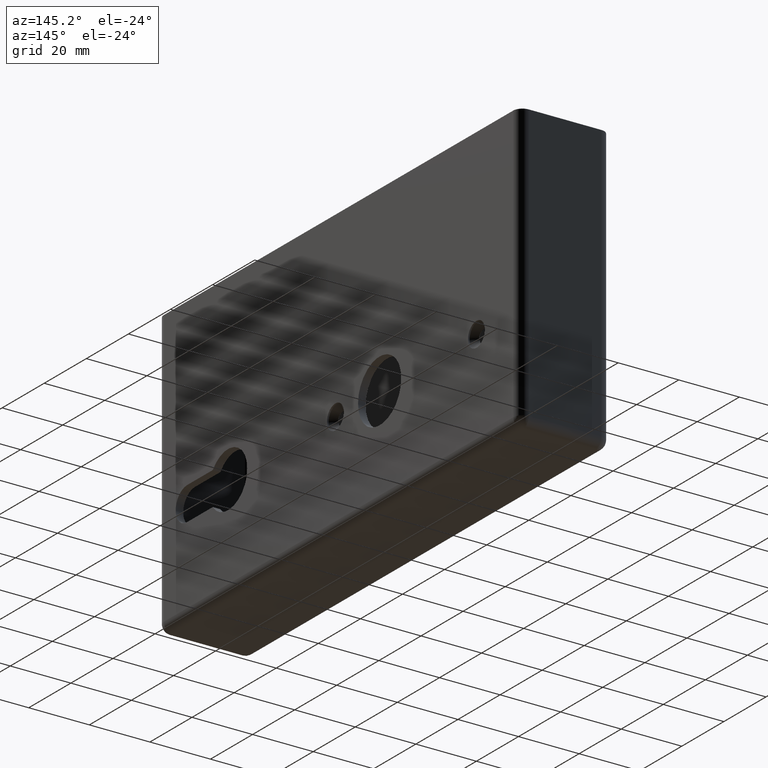
[diagram: clean part render]
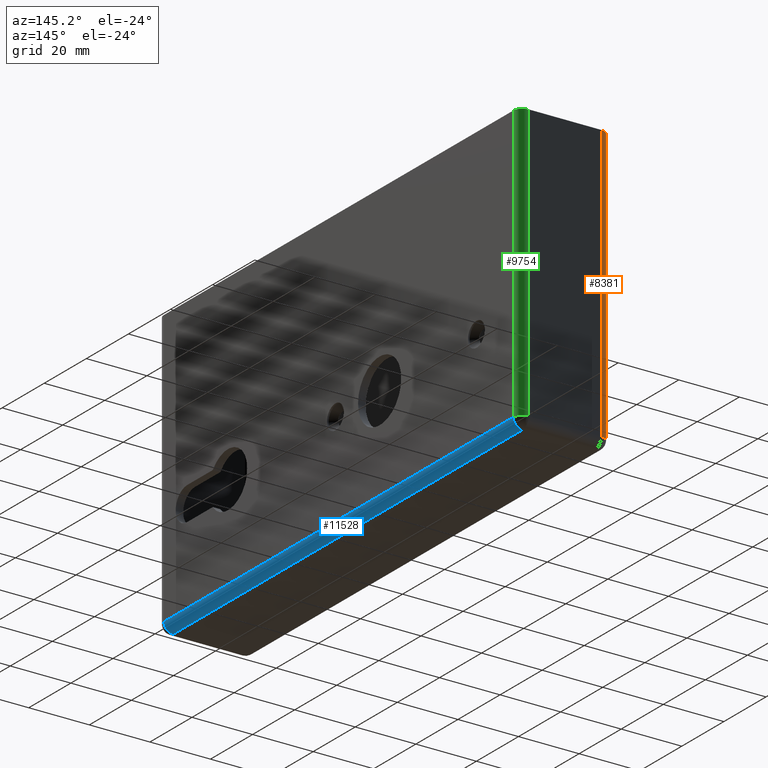
[diagram: same view with three faces highlighted in distinct colors, each labeled with its STEP entity id]
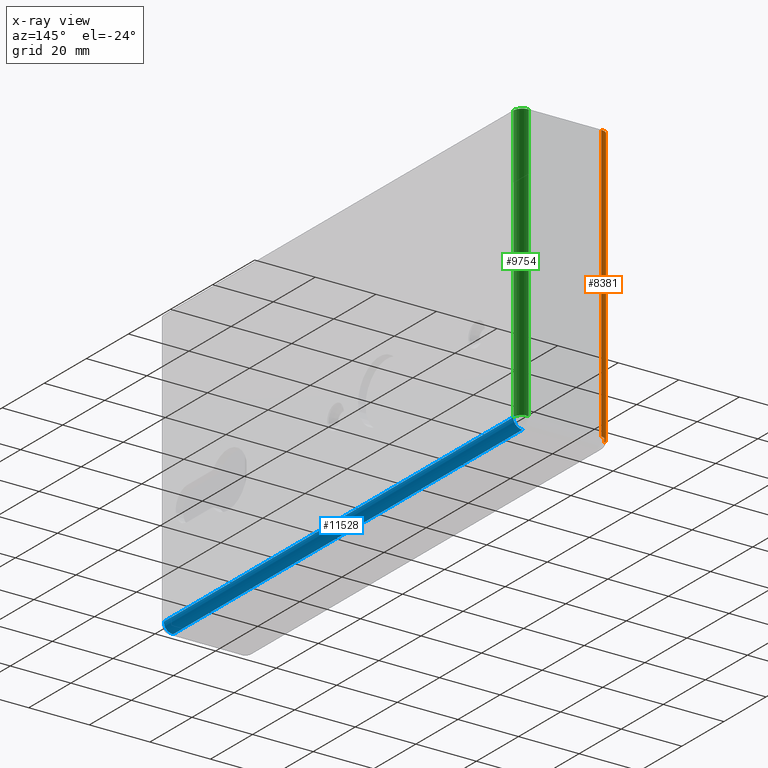
[diagram: x-ray of the same camera — body ghosted, the three highlighted faces saturated]
A machine part, auxiliary view with three faces highlighted in distinct colors.
The next image is the same camera in x-ray (body ghosted, the three faces saturated) — at least one of them is partly hidden behind the body in this view.
Their STEP definitions:

[orange] entity #8381 — the highlighted cylindrical surface (edge-blend (fillet) strip) has radius 3 mm, axis along (0, 0, -1).
#899 = CIRCLE ( 'NONE', #5207, 2.999999999999999112 ) ;
#1094 = DIRECTION ( 'NONE',  ( -0.000000000000000000, -0.000000000000000000, 1.000000000000000000 ) ) ;
#1478 = VERTEX_POINT ( 'NONE', #10431 ) ;
#2577 = EDGE_LOOP ( 'NONE', ( #9421, #10804, #11515, #5413 ) ) ;
#2698 = DIRECTION ( 'NONE',  ( 0.000000000000000000, 0.000000000000000000, -1.000000000000000000 ) ) ;
#2800 = DIRECTION ( 'NONE',  ( -1.000000000000000000, 0.000000000000000000, 0.000000000000000000 ) ) ;
#2939 = DIRECTION ( 'NONE',  ( 0.000000000000000000, 0.000000000000000000, -1.000000000000000000 ) ) ;
#2942 = AXIS2_PLACEMENT_3D ( 'NONE', #7628, #9788, #2800 ) ;
#3278 = FACE_OUTER_BOUND ( 'NONE', #2577, .T. ) ;
#3838 = DIRECTION ( 'NONE',  ( -1.000000000000000000, 0.000000000000000000, 0.000000000000000000 ) ) ;
#4299 = CIRCLE ( 'NONE', #8607, 2.999999999999999112 ) ;
#4366 = EDGE_CURVE ( 'NONE', #1478, #7816, #6115, .T. ) ;
#4536 = CARTESIAN_POINT ( 'NONE',  ( -15.00000000000000533, 82.99999999999998579, -44.00000000000000000 ) ) ;
#5207 = AXIS2_PLACEMENT_3D ( 'NONE', #6600, #9616, #7552 ) ;
#5413 = ORIENTED_EDGE ( 'NONE', *, *, #7765, .F. ) ;
#5968 = CARTESIAN_POINT ( 'NONE',  ( -12.00000000000000355, 82.99999999999998579, -44.00000000000000000 ) ) ;
#6115 = LINE ( 'NONE', #8991, #10824 ) ;
#6384 = VERTEX_POINT ( 'NONE', #11853 ) ;
#6600 = CARTESIAN_POINT ( 'NONE',  ( -12.00000000000000355, 82.99999999999998579, 47.00000000000000000 ) ) ;
#6722 = CYLINDRICAL_SURFACE ( 'NONE', #2942, 2.999999999999999112 ) ;
#7193 = EDGE_CURVE ( 'NONE', #7816, #6384, #899, .T. ) ;
#7552 = DIRECTION ( 'NONE',  ( 1.000000000000000000, 0.000000000000000000, 0.000000000000000000 ) ) ;
#7628 = CARTESIAN_POINT ( 'NONE',  ( -12.00000000000000355, 82.99999999999998579, 47.00000000000000000 ) ) ;
#7765 = EDGE_CURVE ( 'NONE', #6384, #10489, #12994, .T. ) ;
#7816 = VERTEX_POINT ( 'NONE', #10339 ) ;
#8381 = ADVANCED_FACE ( 'NONE', ( #3278 ), #6722, .T. ) ;
#8607 = AXIS2_PLACEMENT_3D ( 'NONE', #5968, #2939, #3838 ) ;
#8991 = CARTESIAN_POINT ( 'NONE',  ( -12.00000000000000355, 86.00000000000000000, 47.00000000000000000 ) ) ;
#9421 = ORIENTED_EDGE ( 'NONE', *, *, #7193, .F. ) ;
#9616 = DIRECTION ( 'NONE',  ( 0.000000000000000000, 0.000000000000000000, 1.000000000000000000 ) ) ;
#9788 = DIRECTION ( 'NONE',  ( 0.000000000000000000, 0.000000000000000000, -1.000000000000000000 ) ) ;
#10339 = CARTESIAN_POINT ( 'NONE',  ( -12.00000000000000355, 86.00000000000000000, 47.00000000000000000 ) ) ;
#10431 = CARTESIAN_POINT ( 'NONE',  ( -12.00000000000000355, 86.00000000000000000, -44.00000000000000000 ) ) ;
#10448 = VECTOR ( 'NONE', #2698, 1000.000000000000000 ) ;
#10489 = VERTEX_POINT ( 'NONE', #4536 ) ;
#10804 = ORIENTED_EDGE ( 'NONE', *, *, #4366, .F. ) ;
#10824 = VECTOR ( 'NONE', #1094, 1000.000000000000000 ) ;
#11304 = CARTESIAN_POINT ( 'NONE',  ( -15.00000000000000533, 82.99999999999998579, 47.00000000000000000 ) ) ;
#11354 = EDGE_CURVE ( 'NONE', #10489, #1478, #4299, .T. ) ;
#11515 = ORIENTED_EDGE ( 'NONE', *, *, #11354, .F. ) ;
#11853 = CARTESIAN_POINT ( 'NONE',  ( -15.00000000000000533, 82.99999999999998579, 47.00000000000000000 ) ) ;
#12994 = LINE ( 'NONE', #11304, #10448 ) ;

[blue] entity #11528 — the highlighted cylindrical surface (edge-blend (fillet) strip) has radius 3 mm, axis along (-0, 1, 0).
#338 = VERTEX_POINT ( 'NONE', #10823 ) ;
#1027 = DIRECTION ( 'NONE',  ( -1.000000000000000000, 0.000000000000000000, 0.000000000000000000 ) ) ;
#1317 = ORIENTED_EDGE ( 'NONE', *, *, #9833, .T. ) ;
#1878 = ORIENTED_EDGE ( 'NONE', *, *, #12181, .F. ) ;
#2060 = VERTEX_POINT ( 'NONE', #5764 ) ;
#2162 = ORIENTED_EDGE ( 'NONE', *, *, #2503, .F. ) ;
#2484 = DIRECTION ( 'NONE',  ( 1.210272192541959355E-16, -1.000000000000000000, -0.000000000000000000 ) ) ;
#2503 = EDGE_CURVE ( 'NONE', #5240, #2060, #5958, .T. ) ;
#2804 = VERTEX_POINT ( 'NONE', #4494 ) ;
#3330 = DIRECTION ( 'NONE',  ( 0.000000000000000000, 0.000000000000000000, -1.000000000000000000 ) ) ;
#3676 = DIRECTION ( 'NONE',  ( -1.210272192541959355E-16, 1.000000000000000000, 0.000000000000000000 ) ) ;
#4494 = CARTESIAN_POINT ( 'NONE',  ( 14.99999999999999112, 82.99999999999998579, -44.00000000000000000 ) ) ;
#5225 = AXIS2_PLACEMENT_3D ( 'NONE', #9895, #6011, #1027 ) ;
#5240 = VERTEX_POINT ( 'NONE', #5311 ) ;
#5311 = CARTESIAN_POINT ( 'NONE',  ( 11.99999999999998934, 82.99999999999998579, -47.00000000000000000 ) ) ;
#5764 = CARTESIAN_POINT ( 'NONE',  ( 12.00000000000001421, -82.99999999999998579, -47.00000000000000000 ) ) ;
#5958 = LINE ( 'NONE', #10385, #9912 ) ;
#6011 = DIRECTION ( 'NONE',  ( -1.210272192541959355E-16, 1.000000000000000000, 0.000000000000000000 ) ) ;
#6374 = FACE_OUTER_BOUND ( 'NONE', #10667, .T. ) ;
#6380 = DIRECTION ( 'NONE',  ( -0.000000000000000000, 1.000000000000000000, -0.000000000000000000 ) ) ;
#6667 = CYLINDRICAL_SURFACE ( 'NONE', #5225, 2.999999999999999112 ) ;
#7831 = ORIENTED_EDGE ( 'NONE', *, *, #11137, .T. ) ;
#8274 = DIRECTION ( 'NONE',  ( -0.000000000000000000, -1.000000000000000000, -0.000000000000000000 ) ) ;
#8299 = CIRCLE ( 'NONE', #11432, 3.000000000000002665 ) ;
#9833 = EDGE_CURVE ( 'NONE', #338, #2060, #8299, .T. ) ;
#9895 = CARTESIAN_POINT ( 'NONE',  ( 11.99999999999998934, 86.00000000000000000, -44.00000000000000000 ) ) ;
#9912 = VECTOR ( 'NONE', #2484, 1000.000000000000000 ) ;
#10298 = LINE ( 'NONE', #12904, #12176 ) ;
#10330 = CARTESIAN_POINT ( 'NONE',  ( 11.99999999999998934, 82.99999999999998579, -44.00000000000000000 ) ) ;
#10385 = CARTESIAN_POINT ( 'NONE',  ( 12.00000000000000000, 0.000000000000000000, -47.00000000000000000 ) ) ;
#10436 = AXIS2_PLACEMENT_3D ( 'NONE', #10330, #8274, #11339 ) ;
#10454 = CARTESIAN_POINT ( 'NONE',  ( 12.00000000000001421, -82.99999999999998579, -44.00000000000000000 ) ) ;
#10667 = EDGE_LOOP ( 'NONE', ( #1317, #2162, #7831, #1878 ) ) ;
#10823 = CARTESIAN_POINT ( 'NONE',  ( 15.00000000000001421, -82.99999999999998579, -44.00000000000000000 ) ) ;
#11137 = EDGE_CURVE ( 'NONE', #5240, #2804, #12190, .T. ) ;
#11339 = DIRECTION ( 'NONE',  ( 0.000000000000000000, 0.000000000000000000, 1.000000000000000000 ) ) ;
#11432 = AXIS2_PLACEMENT_3D ( 'NONE', #10454, #6380, #3330 ) ;
#11528 = ADVANCED_FACE ( 'NONE', ( #6374 ), #6667, .T. ) ;
#12176 = VECTOR ( 'NONE', #3676, 1000.000000000000000 ) ;
#12181 = EDGE_CURVE ( 'NONE', #338, #2804, #10298, .T. ) ;
#12190 = CIRCLE ( 'NONE', #10436, 3.000000000000002665 ) ;
#12904 = CARTESIAN_POINT ( 'NONE',  ( 14.99999999999999112, 86.00000000000000000, -44.00000000000000000 ) ) ;

[green] entity #9754 — the highlighted cylindrical surface (edge-blend (fillet) strip) has radius 3 mm, axis along (0, 0, -1).
#341 = CIRCLE ( 'NONE', #9864, 3.000000000000000888 ) ;
#423 = VERTEX_POINT ( 'NONE', #10060 ) ;
#430 = DIRECTION ( 'NONE',  ( 1.000000000000000000, 0.000000000000000000, 0.000000000000000000 ) ) ;
#597 = VECTOR ( 'NONE', #5292, 1000.000000000000000 ) ;
#802 = LINE ( 'NONE', #4365, #3150 ) ;
#1125 = AXIS2_PLACEMENT_3D ( 'NONE', #10145, #7054, #5066 ) ;
#1492 = EDGE_CURVE ( 'NONE', #9286, #423, #341, .T. ) ;
#1582 = ORIENTED_EDGE ( 'NONE', *, *, #9081, .F. ) ;
#1932 = CARTESIAN_POINT ( 'NONE',  ( 11.99999999999999112, 86.00000000000000000, -44.00000000000000000 ) ) ;
#2201 = CARTESIAN_POINT ( 'NONE',  ( 11.99999999999999112, 86.00000000000000000, 47.00000000000000000 ) ) ;
#2213 = EDGE_CURVE ( 'NONE', #2804, #9286, #802, .T. ) ;
#2473 = DIRECTION ( 'NONE',  ( -0.000000000000000000, -0.000000000000000000, 1.000000000000000000 ) ) ;
#2541 = DIRECTION ( 'NONE',  ( 0.000000000000000000, 0.000000000000000000, 1.000000000000000000 ) ) ;
#2650 = VERTEX_POINT ( 'NONE', #1932 ) ;
#2804 = VERTEX_POINT ( 'NONE', #4494 ) ;
#3113 = FACE_OUTER_BOUND ( 'NONE', #9071, .T. ) ;
#3150 = VECTOR ( 'NONE', #2473, 1000.000000000000000 ) ;
#4019 = EDGE_CURVE ( 'NONE', #2650, #2804, #10523, .T. ) ;
#4365 = CARTESIAN_POINT ( 'NONE',  ( 14.99999999999999112, 82.99999999999998579, 47.00000000000000000 ) ) ;
#4494 = CARTESIAN_POINT ( 'NONE',  ( 14.99999999999999112, 82.99999999999998579, -44.00000000000000000 ) ) ;
#5066 = DIRECTION ( 'NONE',  ( -1.000000000000000000, 0.000000000000000000, 0.000000000000000000 ) ) ;
#5292 = DIRECTION ( 'NONE',  ( 0.000000000000000000, 0.000000000000000000, -1.000000000000000000 ) ) ;
#6185 = ORIENTED_EDGE ( 'NONE', *, *, #1492, .F. ) ;
#6559 = DIRECTION ( 'NONE',  ( 0.000000000000000000, 0.000000000000000000, -1.000000000000000000 ) ) ;
#7054 = DIRECTION ( 'NONE',  ( 0.000000000000000000, 0.000000000000000000, -1.000000000000000000 ) ) ;
#7366 = LINE ( 'NONE', #2201, #597 ) ;
#7414 = CARTESIAN_POINT ( 'NONE',  ( 11.99999999999999112, 82.99999999999998579, 47.00000000000000000 ) ) ;
#8477 = CARTESIAN_POINT ( 'NONE',  ( 11.99999999999999112, 82.99999999999998579, -44.00000000000000000 ) ) ;
#8617 = CYLINDRICAL_SURFACE ( 'NONE', #1125, 3.000000000000000888 ) ;
#9071 = EDGE_LOOP ( 'NONE', ( #6185, #9382, #9810, #1582 ) ) ;
#9081 = EDGE_CURVE ( 'NONE', #423, #2650, #7366, .T. ) ;
#9286 = VERTEX_POINT ( 'NONE', #12158 ) ;
#9382 = ORIENTED_EDGE ( 'NONE', *, *, #2213, .F. ) ;
#9754 = ADVANCED_FACE ( 'NONE', ( #3113 ), #8617, .T. ) ;
#9810 = ORIENTED_EDGE ( 'NONE', *, *, #4019, .F. ) ;
#9864 = AXIS2_PLACEMENT_3D ( 'NONE', #7414, #2541, #430 ) ;
#10060 = CARTESIAN_POINT ( 'NONE',  ( 11.99999999999998401, 86.00000000000000000, 47.00000000000000000 ) ) ;
#10145 = CARTESIAN_POINT ( 'NONE',  ( 11.99999999999999112, 82.99999999999998579, 47.00000000000000000 ) ) ;
#10523 = CIRCLE ( 'NONE', #11819, 3.000000000000000888 ) ;
#10652 = DIRECTION ( 'NONE',  ( -1.000000000000000000, 0.000000000000000000, 0.000000000000000000 ) ) ;
#11819 = AXIS2_PLACEMENT_3D ( 'NONE', #8477, #6559, #10652 ) ;
#12158 = CARTESIAN_POINT ( 'NONE',  ( 14.99999999999999112, 82.99999999999998579, 47.00000000000000000 ) ) ;